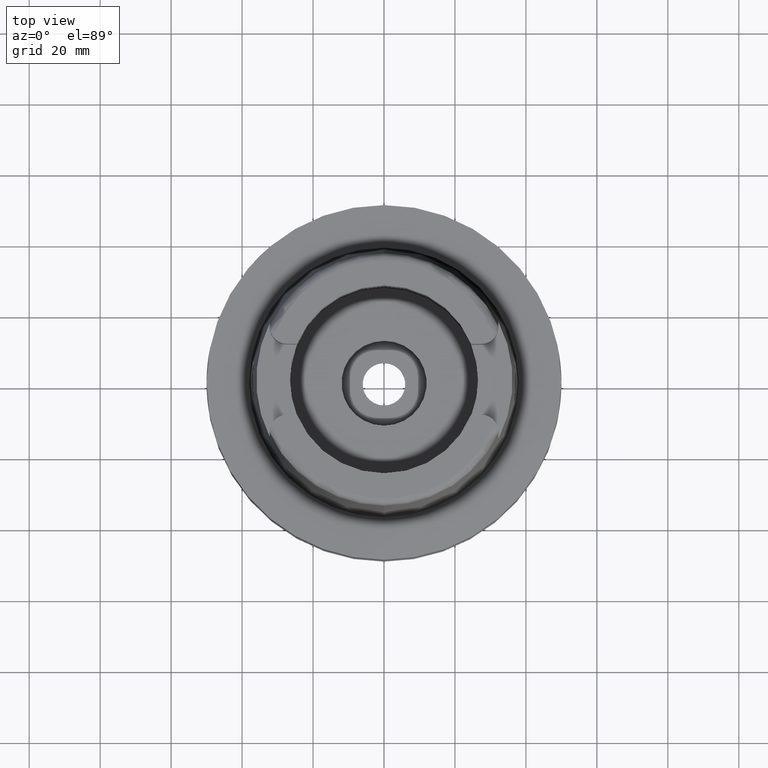
[diagram: clean part render]
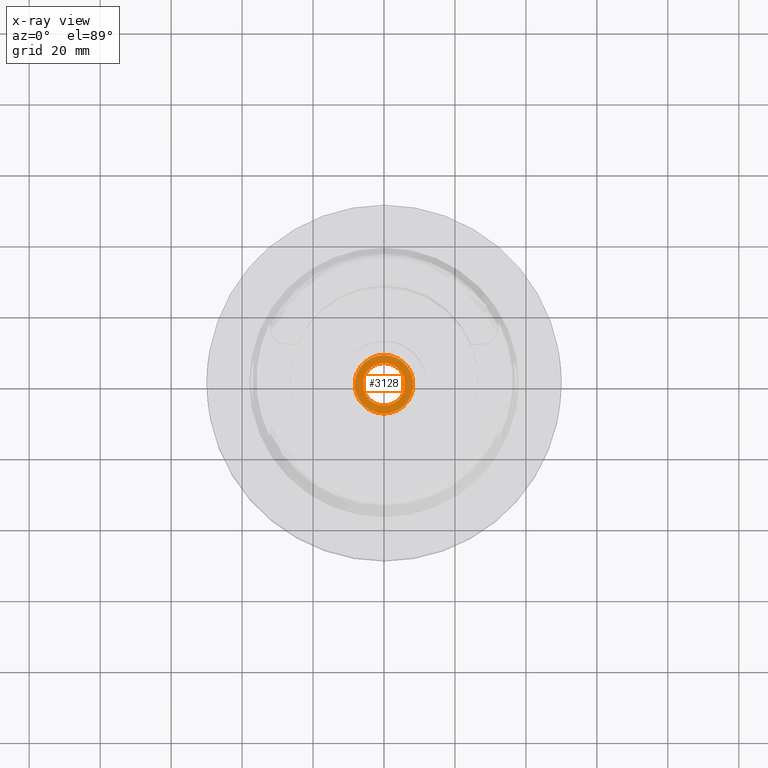
[diagram: x-ray — body ghosted, one internal face saturated and labeled with its STEP entity id]
A machine part, top view, then the same camera in x-ray: the body is ghosted and one INTERNAL B-rep face — a face not visible from any outside direction — is saturated and labeled: STEP entity #3128.
In plain terms, the highlighted planar face has unit normal (0, 0, 1).
Its self-contained STEP definition (entity closure, byte-faithful):
#925=CARTESIAN_POINT('',(0.E0,0.E0,-3.15E1));
#926=DIRECTION('',(0.E0,0.E0,1.E0));
#927=DIRECTION('',(0.E0,-1.E0,0.E0));
#928=AXIS2_PLACEMENT_3D('',#925,#926,#927);
#933=CARTESIAN_POINT('',(0.E0,0.E0,-3.15E1));
#934=DIRECTION('',(0.E0,0.E0,1.E0));
#935=DIRECTION('',(0.E0,1.E0,0.E0));
#936=AXIS2_PLACEMENT_3D('',#933,#934,#935);
#941=CARTESIAN_POINT('',(0.E0,0.E0,-3.15E1));
#942=DIRECTION('',(0.E0,0.E0,-1.E0));
#943=DIRECTION('',(0.E0,-1.E0,0.E0));
#944=AXIS2_PLACEMENT_3D('',#941,#942,#943);
#949=CARTESIAN_POINT('',(0.E0,0.E0,-3.15E1));
#950=DIRECTION('',(0.E0,0.E0,-1.E0));
#951=DIRECTION('',(0.E0,1.E0,0.E0));
#952=AXIS2_PLACEMENT_3D('',#949,#950,#951);
#2306=CARTESIAN_POINT('',(0.E0,6.E0,-3.15E1));
#2307=VERTEX_POINT('',#2306);
#2308=CARTESIAN_POINT('',(0.E0,-6.E0,-3.15E1));
#2309=VERTEX_POINT('',#2308);
#2310=CARTESIAN_POINT('',(0.E0,-8.25E0,-3.15E1));
#2311=CARTESIAN_POINT('',(0.E0,8.25E0,-3.15E1));
#2312=VERTEX_POINT('',#2310);
#2313=VERTEX_POINT('',#2311);
#3113=CARTESIAN_POINT('',(0.E0,0.E0,-3.15E1));
#3114=DIRECTION('',(0.E0,0.E0,1.E0));
#3115=DIRECTION('',(0.E0,1.E0,0.E0));
#3116=AXIS2_PLACEMENT_3D('',#3113,#3114,#3115);
#3117=PLANE('',#3116);
#3119=ORIENTED_EDGE('',*,*,#3118,.T.);
#3121=ORIENTED_EDGE('',*,*,#3120,.T.);
#3122=EDGE_LOOP('',(#3119,#3121));
#3123=FACE_OUTER_BOUND('',#3122,.F.);
#3124=ORIENTED_EDGE('',*,*,#3106,.T.);
#3125=ORIENTED_EDGE('',*,*,#3095,.T.);
#3126=EDGE_LOOP('',(#3124,#3125));
#3127=FACE_BOUND('',#3126,.F.);
#929=CIRCLE('',#928,8.25E0);
#937=CIRCLE('',#936,8.25E0);
#945=CIRCLE('',#944,6.E0);
#953=CIRCLE('',#952,6.E0);
#3095=EDGE_CURVE('',#2307,#2309,#953,.T.);
#3106=EDGE_CURVE('',#2309,#2307,#945,.T.);
#3118=EDGE_CURVE('',#2312,#2313,#929,.T.);
#3120=EDGE_CURVE('',#2313,#2312,#937,.T.);
#3128=ADVANCED_FACE('',(#3123,#3127),#3117,.F.);